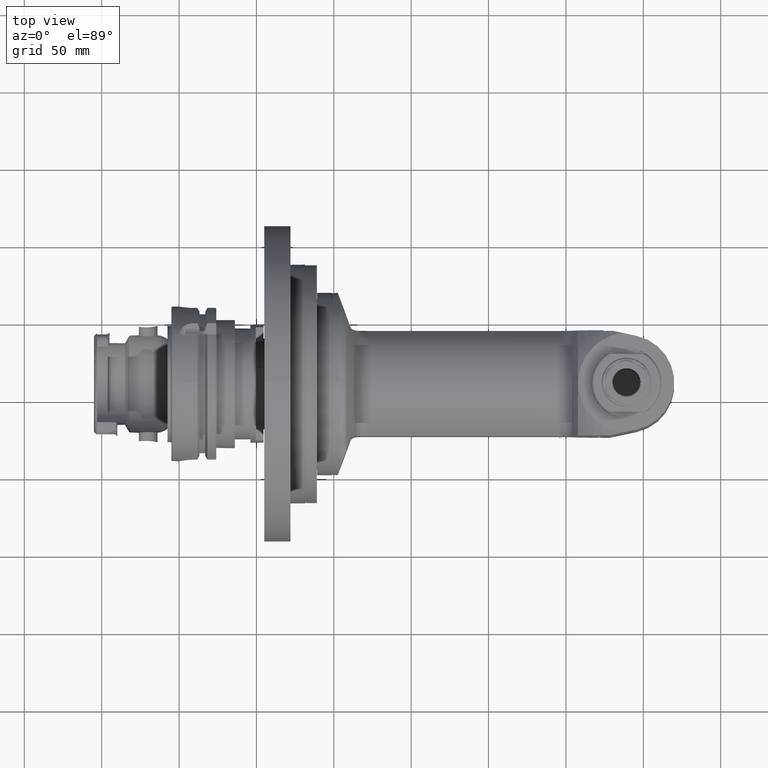
[diagram: clean part render]
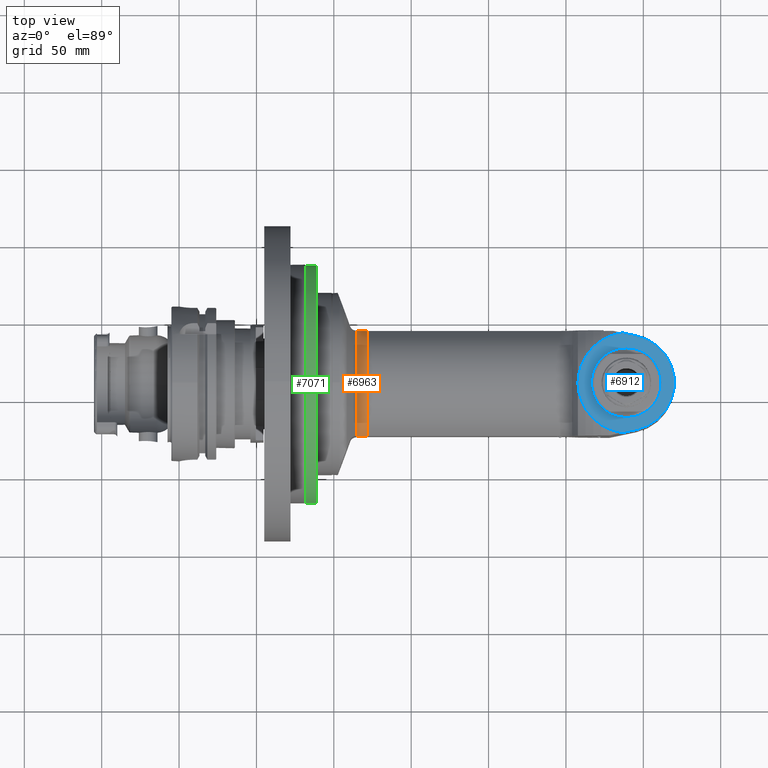
[diagram: same view with three faces highlighted in distinct colors, each labeled with its STEP entity id]
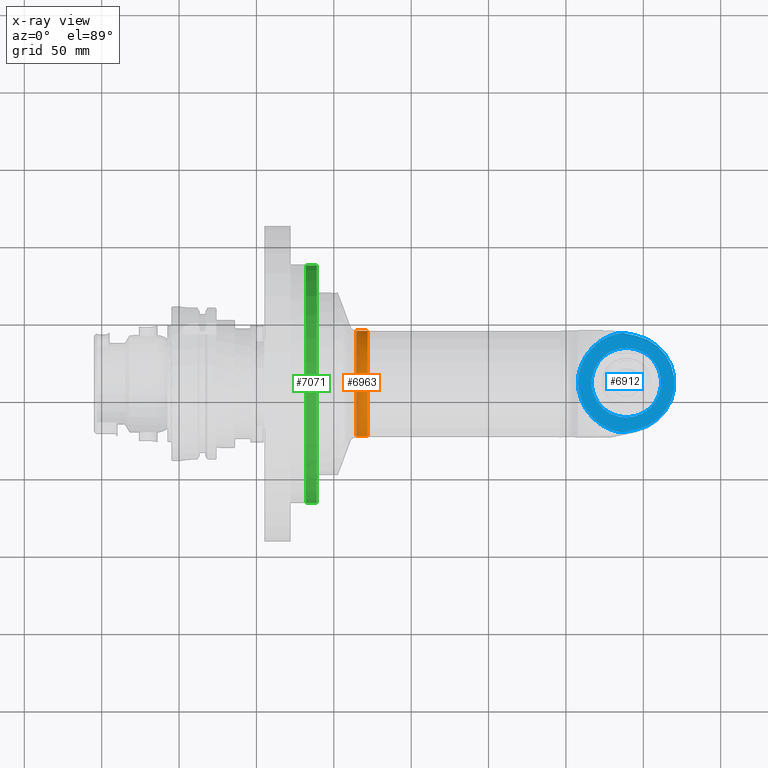
[diagram: x-ray of the same camera — body ghosted, the three highlighted faces saturated]
A machine part, top view with three faces highlighted in distinct colors.
The next image is the same camera in x-ray (body ghosted, the three faces saturated) — at least one of them is partly hidden behind the body in this view.
Their STEP definitions:

[orange] entity #6963 — the highlighted toroidal blend (fillet) surface has major radius 46 mm and minor (blend) radius 8 mm.
#67=TOROIDAL_SURFACE('',#7683,46.,8.);
#1626=FACE_OUTER_BOUND('',#2075,.T.);
#2075=EDGE_LOOP('',(#5709,#5710,#5711,#5712));
#2420=B_SPLINE_CURVE_WITH_KNOTS('',3,(#12016,#12017,#12018,#12019,#12020,
#12021,#12022,#12023,#12024,#12025,#12026,#12027,#12028,#12029,#12030,#12031),
 .UNSPECIFIED.,.F.,.F.,(4,2,2,2,2,2,2,4),(1.92235578597459,1.94011054685314,
2.19299586582667,2.4458811848002,2.63271120212388,2.81954121944757,2.94693218780986,
3.05573251034379),.UNSPECIFIED.);
#2424=B_SPLINE_CURVE_WITH_KNOTS('',3,(#12169,#12170,#12171,#12172,#12173,
#12174,#12175,#12176,#12177,#12178,#12179,#12180,#12181,#12182,#12183,#12184),
 .UNSPECIFIED.,.F.,.F.,(4,2,2,2,2,2,2,4),(3.0557325103438,3.16453283287773,
3.29192380124002,3.4787538185637,3.66558383588739,3.91846915486091,4.17135447383444,
4.18910923548422),.UNSPECIFIED.);
#2658=CIRCLE('',#7679,42.61905390607);
#2660=CIRCLE('',#7684,38.);
#3168=VERTEX_POINT('',#12011);
#3169=VERTEX_POINT('',#12015);
#3199=VERTEX_POINT('',#12166);
#3200=VERTEX_POINT('',#12168);
#4017=EDGE_CURVE('',#3168,#3169,#2420,.T.);
#4051=EDGE_CURVE('',#3199,#3200,#2424,.T.);
#4126=EDGE_CURVE('',#3168,#3200,#2658,.T.);
#4131=EDGE_CURVE('',#3199,#3169,#2660,.T.);
#5709=ORIENTED_EDGE('',*,*,#4126,.T.);
#5710=ORIENTED_EDGE('',*,*,#4051,.F.);
#5711=ORIENTED_EDGE('',*,*,#4131,.T.);
#5712=ORIENTED_EDGE('',*,*,#4017,.F.);
#6963=ADVANCED_FACE('',(#1626),#67,.F.);
#7679=AXIS2_PLACEMENT_3D('',#12481,#9179,#9180);
#7683=AXIS2_PLACEMENT_3D('',#12504,#9187,#9188);
#7684=AXIS2_PLACEMENT_3D('',#12505,#9189,#9190);
#9179=DIRECTION('center_axis',(1.,0.,0.));
#9180=DIRECTION('ref_axis',(0.,-1.,0.));
#9187=DIRECTION('center_axis',(-1.,0.,0.));
#9188=DIRECTION('ref_axis',(0.,0.,1.));
#9189=DIRECTION('center_axis',(-1.,0.,0.));
#9190=DIRECTION('ref_axis',(0.,-0.44659375653888,-0.894736842105259));
#12011=CARTESIAN_POINT('',(31.1385608103931,-25.6979316236888,34.0000002653272));
#12015=CARTESIAN_POINT('',(38.3890228437,-16.97056274848,34.));
#12016=CARTESIAN_POINT('Ctrl Pts',(31.1385609018575,-25.6979316494057,34.));
#12017=CARTESIAN_POINT('Ctrl Pts',(31.1547835937394,-25.6402342976273,34.));
#12018=CARTESIAN_POINT('Ctrl Pts',(31.1711585706959,-25.5829560839057,34.));
#12019=CARTESIAN_POINT('Ctrl Pts',(31.4228209341212,-24.7166356546219,34.));
#12020=CARTESIAN_POINT('Ctrl Pts',(31.7326935245449,-23.8439416682403,34.));
#12021=CARTESIAN_POINT('Ctrl Pts',(32.4781160793825,-22.1555959983675,34.));
#12022=CARTESIAN_POINT('Ctrl Pts',(32.9139519666778,-21.3400705673323,34.));
#12023=CARTESIAN_POINT('Ctrl Pts',(33.7075269965354,-20.1077689382488,34.));
#12024=CARTESIAN_POINT('Ctrl Pts',(34.1113046644895,-19.555304351645,34.));
#12025=CARTESIAN_POINT('Ctrl Pts',(35.0171104654881,-18.5465996865153,34.));
#12026=CARTESIAN_POINT('Ctrl Pts',(35.5202217011755,-18.0913327478181,34.));
#12027=CARTESIAN_POINT('Ctrl Pts',(36.3927317220103,-17.5118675579488,34.));
#12028=CARTESIAN_POINT('Ctrl Pts',(36.8469152475922,-17.2808423077824,34.));
#12029=CARTESIAN_POINT('Ctrl Pts',(37.5969919386582,-17.041608064786,34.));
#12030=CARTESIAN_POINT('Ctrl Pts',(38.0263551019202,-16.9705627484771,34.));
#12031=CARTESIAN_POINT('Ctrl Pts',(38.3890228437,-16.9705627484771,34.));
#12166=CARTESIAN_POINT('',(38.3890228437,-16.97056274848,-34.));
#12168=CARTESIAN_POINT('',(31.1385608088246,-25.6979316313608,-34.0000002637447));
#12169=CARTESIAN_POINT('Ctrl Pts',(38.3890228437,-16.9705627484771,-34.));
#12170=CARTESIAN_POINT('Ctrl Pts',(38.0263551019203,-16.9705627484771,-34.));
#12171=CARTESIAN_POINT('Ctrl Pts',(37.5969919386582,-17.041608064786,-34.));
#12172=CARTESIAN_POINT('Ctrl Pts',(36.8469152475923,-17.2808423077824,-34.));
#12173=CARTESIAN_POINT('Ctrl Pts',(36.3927317220103,-17.5118675579487,-34.));
#12174=CARTESIAN_POINT('Ctrl Pts',(35.5202217011756,-18.0913327478181,-34.));
#12175=CARTESIAN_POINT('Ctrl Pts',(35.0171104654881,-18.5465996865153,-34.));
#12176=CARTESIAN_POINT('Ctrl Pts',(34.1113046644895,-19.5553043516449,-34.));
#12177=CARTESIAN_POINT('Ctrl Pts',(33.7075269965354,-20.1077689382487,-34.));
#12178=CARTESIAN_POINT('Ctrl Pts',(32.9139519666779,-21.3400705673322,-34.));
#12179=CARTESIAN_POINT('Ctrl Pts',(32.4781160793825,-22.1555959983674,-34.));
#12180=CARTESIAN_POINT('Ctrl Pts',(31.732693524545,-23.8439416682403,-34.));
#12181=CARTESIAN_POINT('Ctrl Pts',(31.4228209341212,-24.7166356546218,-34.));
#12182=CARTESIAN_POINT('Ctrl Pts',(31.1711585699787,-25.5829560863743,-34.));
#12183=CARTESIAN_POINT('Ctrl Pts',(31.1547835923169,-25.6402343026033,-34.));
#12184=CARTESIAN_POINT('Ctrl Pts',(31.1385608997435,-25.6979316569244,-34.));
#12481=CARTESIAN_POINT('Origin',(31.1385605474,0.,0.));
#12504=CARTESIAN_POINT('Origin',(38.3890228437,0.,0.));
#12505=CARTESIAN_POINT('Origin',(38.3890228437,0.,0.));

[blue] entity #6912 — the highlighted planar face has unit normal (-0, -0, -1).
#90=FACE_BOUND('',#2020,.T.);
#300=(
BOUNDED_CURVE()
B_SPLINE_CURVE(2,(#11787,#11788,#11789),.UNSPECIFIED.,.F.,.F.)
B_SPLINE_CURVE_WITH_KNOTS((3,3),(2.88902414097292,3.30501681912814),
 .UNSPECIFIED.)
CURVE()
GEOMETRIC_REPRESENTATION_ITEM()
RATIONAL_B_SPLINE_CURVE((1.00189283690563,1.0019204470716,1.00191676364353))
REPRESENTATION_ITEM('')
);
#301=(
BOUNDED_CURVE()
B_SPLINE_CURVE(2,(#11791,#11792,#11793),.UNSPECIFIED.,.F.,.F.)
B_SPLINE_CURVE_WITH_KNOTS((3,3),(2.73247816607829,3.28203525421439),
 .UNSPECIFIED.)
CURVE()
GEOMETRIC_REPRESENTATION_ITEM()
RATIONAL_B_SPLINE_CURVE((1.00758479886958,1.00783042569656,1.00786805298827))
REPRESENTATION_ITEM('')
);
#302=(
BOUNDED_CURVE()
B_SPLINE_CURVE(2,(#11795,#11796,#11797),.UNSPECIFIED.,.F.,.F.)
B_SPLINE_CURVE_WITH_KNOTS((3,3),(2.60296263611866,3.23090776289743),
 .UNSPECIFIED.)
CURVE()
GEOMETRIC_REPRESENTATION_ITEM()
RATIONAL_B_SPLINE_CURVE((1.01701917435149,1.01790887547478,1.01823736330689))
REPRESENTATION_ITEM('')
);
#303=(
BOUNDED_CURVE()
B_SPLINE_CURVE(2,(#11799,#11800,#11801),.UNSPECIFIED.,.F.,.F.)
B_SPLINE_CURVE_WITH_KNOTS((3,3),(2.47232019756591,3.24254735066141),
 .UNSPECIFIED.)
CURVE()
GEOMETRIC_REPRESENTATION_ITEM()
RATIONAL_B_SPLINE_CURVE((1.03008187879672,1.03261146724869,1.03379752672964))
REPRESENTATION_ITEM('')
);
#304=(
BOUNDED_CURVE()
B_SPLINE_CURVE(2,(#11803,#11804,#11805),.UNSPECIFIED.,.F.,.F.)
B_SPLINE_CURVE_WITH_KNOTS((3,3),(2.47400310157723,3.52086127835188),
 .UNSPECIFIED.)
CURVE()
GEOMETRIC_REPRESENTATION_ITEM()
RATIONAL_B_SPLINE_CURVE((1.05103468797867,1.05766659348911,1.0607732138904))
REPRESENTATION_ITEM('')
);
#305=(
BOUNDED_CURVE()
B_SPLINE_CURVE(2,(#11807,#11808,#11809),.UNSPECIFIED.,.F.,.F.)
B_SPLINE_CURVE_WITH_KNOTS((3,3),(9.44718045125391,12.5133383101381),
 .UNSPECIFIED.)
CURVE()
GEOMETRIC_REPRESENTATION_ITEM()
RATIONAL_B_SPLINE_CURVE((1.37294381060703,1.37294381060703,1.33365869794276))
REPRESENTATION_ITEM('')
);
#306=(
BOUNDED_CURVE()
B_SPLINE_CURVE(2,(#11811,#11812,#11813),.UNSPECIFIED.,.F.,.F.)
B_SPLINE_CURVE_WITH_KNOTS((3,3),(6.38102259223833,9.44718045125391),
 .UNSPECIFIED.)
CURVE()
GEOMETRIC_REPRESENTATION_ITEM()
RATIONAL_B_SPLINE_CURVE((1.33365869793939,1.37294381060703,1.37294381060703))
REPRESENTATION_ITEM('')
);
#307=(
BOUNDED_CURVE()
B_SPLINE_CURVE(2,(#11815,#11816,#11817),.UNSPECIFIED.,.F.,.F.)
B_SPLINE_CURVE_WITH_KNOTS((3,3),(-6.41278495679031,-5.36592678001913),
 .UNSPECIFIED.)
CURVE()
GEOMETRIC_REPRESENTATION_ITEM()
RATIONAL_B_SPLINE_CURVE((1.05103468797871,1.05766659348912,1.0607732138904))
REPRESENTATION_ITEM('')
);
#308=(
BOUNDED_CURVE()
B_SPLINE_CURVE(2,(#11819,#11820,#11821),.UNSPECIFIED.,.F.,.F.)
B_SPLINE_CURVE_WITH_KNOTS((3,3),(-5.37267851345796,-4.60245155291283),
 .UNSPECIFIED.)
CURVE()
GEOMETRIC_REPRESENTATION_ITEM()
RATIONAL_B_SPLINE_CURVE((1.03008187879672,1.03261146661631,1.03379752613663))
REPRESENTATION_ITEM('')
);
#309=(
BOUNDED_CURVE()
B_SPLINE_CURVE(2,(#11823,#11824,#11825),.UNSPECIFIED.,.F.,.F.)
B_SPLINE_CURVE_WITH_KNOTS((3,3),(-4.59394733377212,-3.9660020272946),
 .UNSPECIFIED.)
CURVE()
GEOMETRIC_REPRESENTATION_ITEM()
RATIONAL_B_SPLINE_CURVE((1.01701917381865,1.01790887536459,1.01823736329816))
REPRESENTATION_ITEM('')
);
#310=(
BOUNDED_CURVE()
B_SPLINE_CURVE(2,(#11827,#11828,#11829),.UNSPECIFIED.,.F.,.F.)
B_SPLINE_CURVE_WITH_KNOTS((3,3),(-4.03042303379876,-3.48086593786654),
 .UNSPECIFIED.)
CURVE()
GEOMETRIC_REPRESENTATION_ITEM()
RATIONAL_B_SPLINE_CURVE((1.00758479886233,1.00783042569586,1.00786805298822))
REPRESENTATION_ITEM('')
);
#311=(
BOUNDED_CURVE()
B_SPLINE_CURVE(2,(#11831,#11832,#11833),.UNSPECIFIED.,.F.,.F.)
B_SPLINE_CURVE_WITH_KNOTS((3,3),(3.20708756850667,3.62308024696926),
 .UNSPECIFIED.)
CURVE()
GEOMETRIC_REPRESENTATION_ITEM()
RATIONAL_B_SPLINE_CURVE((1.00191676364353,1.0019204470716,1.00189283690558))
REPRESENTATION_ITEM('')
);
#562=LINE('',#11785,#976);
#563=LINE('',#11834,#977);
#976=VECTOR('',#8929,8.87507655635703);
#977=VECTOR('',#8930,8.87507655635602);
#1293=PLANE('',#7575);
#1575=FACE_OUTER_BOUND('',#2019,.T.);
#2019=EDGE_LOOP('',(#5398,#5399,#5400,#5401,#5402,#5403,#5404,#5405,#5406,
#5407,#5408,#5409,#5410,#5411,#5412));
#2020=EDGE_LOOP('',(#5413));
#2612=CIRCLE('',#7569,22.5);
#2613=CIRCLE('',#7576,31.);
#3111=VERTEX_POINT('',#11761);
#3117=VERTEX_POINT('',#11781);
#3118=VERTEX_POINT('',#11782);
#3119=VERTEX_POINT('',#11784);
#3120=VERTEX_POINT('',#11786);
#3121=VERTEX_POINT('',#11790);
#3122=VERTEX_POINT('',#11794);
#3123=VERTEX_POINT('',#11798);
#3124=VERTEX_POINT('',#11802);
#3125=VERTEX_POINT('',#11806);
#3126=VERTEX_POINT('',#11810);
#3127=VERTEX_POINT('',#11814);
#3128=VERTEX_POINT('',#11818);
#3129=VERTEX_POINT('',#11822);
#3130=VERTEX_POINT('',#11826);
#3131=VERTEX_POINT('',#11830);
#3937=EDGE_CURVE('',#3111,#3111,#2612,.T.);
#3948=EDGE_CURVE('',#3117,#3118,#2613,.T.);
#3949=EDGE_CURVE('',#3118,#3119,#562,.T.);
#3950=EDGE_CURVE('',#3120,#3119,#300,.T.);
#3951=EDGE_CURVE('',#3121,#3120,#301,.T.);
#3952=EDGE_CURVE('',#3122,#3121,#302,.T.);
#3953=EDGE_CURVE('',#3123,#3122,#303,.T.);
#3954=EDGE_CURVE('',#3124,#3123,#304,.T.);
#3955=EDGE_CURVE('',#3125,#3124,#305,.T.);
#3956=EDGE_CURVE('',#3126,#3125,#306,.T.);
#3957=EDGE_CURVE('',#3126,#3127,#307,.T.);
#3958=EDGE_CURVE('',#3127,#3128,#308,.T.);
#3959=EDGE_CURVE('',#3128,#3129,#309,.T.);
#3960=EDGE_CURVE('',#3129,#3130,#310,.T.);
#3961=EDGE_CURVE('',#3131,#3130,#311,.T.);
#3962=EDGE_CURVE('',#3131,#3117,#563,.T.);
#5398=ORIENTED_EDGE('',*,*,#3948,.T.);
#5399=ORIENTED_EDGE('',*,*,#3949,.T.);
#5400=ORIENTED_EDGE('',*,*,#3950,.F.);
#5401=ORIENTED_EDGE('',*,*,#3951,.F.);
#5402=ORIENTED_EDGE('',*,*,#3952,.F.);
#5403=ORIENTED_EDGE('',*,*,#3953,.F.);
#5404=ORIENTED_EDGE('',*,*,#3954,.F.);
#5405=ORIENTED_EDGE('',*,*,#3955,.F.);
#5406=ORIENTED_EDGE('',*,*,#3956,.F.);
#5407=ORIENTED_EDGE('',*,*,#3957,.T.);
#5408=ORIENTED_EDGE('',*,*,#3958,.T.);
#5409=ORIENTED_EDGE('',*,*,#3959,.T.);
#5410=ORIENTED_EDGE('',*,*,#3960,.T.);
#5411=ORIENTED_EDGE('',*,*,#3961,.F.);
#5412=ORIENTED_EDGE('',*,*,#3962,.T.);
#5413=ORIENTED_EDGE('',*,*,#3937,.T.);
#6912=ADVANCED_FACE('',(#1575,#90),#1293,.F.);
#7569=AXIS2_PLACEMENT_3D('',#11762,#8906,#8907);
#7575=AXIS2_PLACEMENT_3D('',#11780,#8925,#8926);
#7576=AXIS2_PLACEMENT_3D('',#11783,#8927,#8928);
#8906=DIRECTION('center_axis',(0.,1.,0.));
#8907=DIRECTION('ref_axis',(0.,0.,1.));
#8925=DIRECTION('center_axis',(0.,1.,0.));
#8926=DIRECTION('ref_axis',(1.,0.,0.));
#8927=DIRECTION('center_axis',(0.,-1.,0.));
#8928=DIRECTION('ref_axis',(0.207911690817109,0.,-0.978147600733944));
#8929=DIRECTION('',(-0.978147600733797,0.,0.207911690817799));
#8930=DIRECTION('',(0.978147600733797,0.,0.207911690817799));
#11761=CARTESIAN_POINT('',(205.5,-49.,-22.5));
#11762=CARTESIAN_POINT('Origin',(205.5,-49.,3.142209408831E-14));
#11780=CARTESIAN_POINT('Origin',(164.5,-49.,-69.6000024));
#11781=CARTESIAN_POINT('',(211.9452624153,-49.,-30.32257562275));
#11782=CARTESIAN_POINT('',(211.9452624153,-49.,30.32257562275));
#11783=CARTESIAN_POINT('Origin',(205.5,-49.,0.));
#11784=CARTESIAN_POINT('',(203.2641275754,-49.,32.16780779572));
#11785=CARTESIAN_POINT('',(211.9452624153,-49.,30.32257562275));
#11786=CARTESIAN_POINT('',(199.1961524227,-49.,31.51462939104));
#11787=CARTESIAN_POINT('Ctrl Pts',(199.1961524227,-49.,31.5146293910373));
#11788=CARTESIAN_POINT('Ctrl Pts',(201.209277783046,-49.,31.840224080351));
#11789=CARTESIAN_POINT('Ctrl Pts',(203.2641275754,-49.,32.1678077957183));
#11790=CARTESIAN_POINT('',(194.196152435398,-48.9999999979614,29.8533396915203));
#11791=CARTESIAN_POINT('Ctrl Pts',(194.19615243675,-49.,29.8533396875325));
#11792=CARTESIAN_POINT('Ctrl Pts',(196.62847503532,-49.,30.6776515930375));
#11793=CARTESIAN_POINT('Ctrl Pts',(199.196152422697,-49.,31.514629391034));
#11794=CARTESIAN_POINT('',(189.19615361432,-48.9999997534141,27.189580566783));
#11795=CARTESIAN_POINT('Ctrl Pts',(189.196153851288,-49.,27.1895801388078));
#11796=CARTESIAN_POINT('Ctrl Pts',(191.579409523151,-49.,28.5057268642236));
#11797=CARTESIAN_POINT('Ctrl Pts',(194.196152436299,-49.,29.8533396897723));
#11798=CARTESIAN_POINT('',(184.1961524227,-49.,23.20825135876));
#11799=CARTESIAN_POINT('Ctrl Pts',(184.196152422696,-49.,23.2082513587645));
#11800=CARTESIAN_POINT('Ctrl Pts',(186.498657988919,-49.,25.1660586913758));
#11801=CARTESIAN_POINT('Ctrl Pts',(189.196153769855,-49.,27.1895803604468));
#11802=CARTESIAN_POINT('',(179.1961524227,-49.,17.06560767261));
#11803=CARTESIAN_POINT('Ctrl Pts',(179.196152422653,-49.,17.0656076725803));
#11804=CARTESIAN_POINT('Ctrl Pts',(181.314847785249,-49.,20.0694406912573));
#11805=CARTESIAN_POINT('Ctrl Pts',(184.196152422692,-49.,23.2082513587661));
#11806=CARTESIAN_POINT('',(174.1961524227,-49.,-2.6645352591E-13));
#11807=CARTESIAN_POINT('Ctrl Pts',(174.196152422707,-49.,-1.39733714645179E-13));
#11808=CARTESIAN_POINT('Ctrl Pts',(174.196152422707,-49.,8.2886480611122));
#11809=CARTESIAN_POINT('Ctrl Pts',(179.196152422417,-49.,17.0656076721249));
#11810=CARTESIAN_POINT('',(179.1961524227,-49.,-17.06560767264));
#11811=CARTESIAN_POINT('Ctrl Pts',(179.196152422859,-49.,-17.0656076728997));
#11812=CARTESIAN_POINT('Ctrl Pts',(174.196152422707,-49.,-8.2886480614677));
#11813=CARTESIAN_POINT('Ctrl Pts',(174.196152422707,-49.,-1.39733714645179E-13));
#11814=CARTESIAN_POINT('',(184.1961524227,-49.,-23.20825135876));
#11815=CARTESIAN_POINT('Ctrl Pts',(179.196152422667,-49.,-17.0656076726003));
#11816=CARTESIAN_POINT('Ctrl Pts',(181.314847785259,-49.,-20.0694406912677));
#11817=CARTESIAN_POINT('Ctrl Pts',(184.196152422692,-49.,-23.2082513587661));
#11818=CARTESIAN_POINT('',(189.1961524227,-49.,-27.18957934988));
#11819=CARTESIAN_POINT('Ctrl Pts',(184.196152422696,-49.,-23.2082513587645));
#11820=CARTESIAN_POINT('Ctrl Pts',(186.498657414722,-49.,-25.1660582031393));
#11821=CARTESIAN_POINT('Ctrl Pts',(189.1961524227,-49.,-27.1895793498804));
#11822=CARTESIAN_POINT('',(194.1961523705,-49.0000000083841,-29.8533396467982));
#11823=CARTESIAN_POINT('Ctrl Pts',(189.196152422699,-49.,-27.1895793498731));
#11824=CARTESIAN_POINT('Ctrl Pts',(191.579408707682,-49.,-28.505726443082));
#11825=CARTESIAN_POINT('Ctrl Pts',(194.196152366808,-49.,-29.853339653985));
#11826=CARTESIAN_POINT('',(199.196152419836,-49.0000000002981,-31.5146293898748));
#11827=CARTESIAN_POINT('Ctrl Pts',(194.196152364948,-49.,-29.8533396631987));
#11828=CARTESIAN_POINT('Ctrl Pts',(196.628474996042,-49.,-30.6776515802163));
#11829=CARTESIAN_POINT('Ctrl Pts',(199.196152419769,-49.,-31.5146293900795));
#11830=CARTESIAN_POINT('',(203.2641275754,-49.,-32.16780779572));
#11831=CARTESIAN_POINT('Ctrl Pts',(203.2641275754,-49.,-32.1678077957183));
#11832=CARTESIAN_POINT('Ctrl Pts',(201.209277781528,-49.,-31.8402240801089));
#11833=CARTESIAN_POINT('Ctrl Pts',(199.196152419725,-49.,-31.5146293905562));
#11834=CARTESIAN_POINT('',(203.2641275754,-49.,-32.16780779572));

[green] entity #7071 — the highlighted cylindrical surface (bore or boss wall) has radius 77 mm, axis along (-1, 0, 0).
#235=CYLINDRICAL_SURFACE('',#7896,77.);
#704=LINE('',#13056,#1118);
#1118=VECTOR('',#9713,77.);
#1734=FACE_OUTER_BOUND('',#2216,.T.);
#2216=EDGE_LOOP('',(#6202,#6203,#6204,#6205));
#2752=CIRCLE('',#7885,77.);
#2763=CIRCLE('',#7897,77.);
#3373=VERTEX_POINT('',#13031);
#3384=VERTEX_POINT('',#13054);
#4339=EDGE_CURVE('',#3373,#3373,#2752,.T.);
#4350=EDGE_CURVE('',#3384,#3384,#2763,.T.);
#4351=EDGE_CURVE('',#3384,#3373,#704,.T.);
#6202=ORIENTED_EDGE('',*,*,#4350,.F.);
#6203=ORIENTED_EDGE('',*,*,#4351,.T.);
#6204=ORIENTED_EDGE('',*,*,#4339,.F.);
#6205=ORIENTED_EDGE('',*,*,#4351,.F.);
#7071=ADVANCED_FACE('',(#1734),#235,.T.);
#7885=AXIS2_PLACEMENT_3D('',#13032,#9687,#9688);
#7896=AXIS2_PLACEMENT_3D('',#13053,#9709,#9710);
#7897=AXIS2_PLACEMENT_3D('',#13055,#9711,#9712);
#9687=DIRECTION('center_axis',(1.,0.,0.));
#9688=DIRECTION('ref_axis',(0.,0.,1.));
#9709=DIRECTION('center_axis',(-1.,0.,0.));
#9710=DIRECTION('ref_axis',(0.,0.,1.));
#9711=DIRECTION('center_axis',(-1.,0.,0.));
#9712=DIRECTION('ref_axis',(0.,0.,-1.));
#9713=DIRECTION('',(1.,0.,0.));
#13031=CARTESIAN_POINT('',(5.5,-9.42978035343462E-15,-77.));
#13032=CARTESIAN_POINT('Origin',(5.5,0.,0.));
#13053=CARTESIAN_POINT('Origin',(-6.6,0.,0.));
#13054=CARTESIAN_POINT('',(-1.7,-9.42978035343462E-15,-77.));
#13055=CARTESIAN_POINT('Origin',(-1.7,0.,0.));
#13056=CARTESIAN_POINT('',(-6.6,-9.42978035343462E-15,-77.));